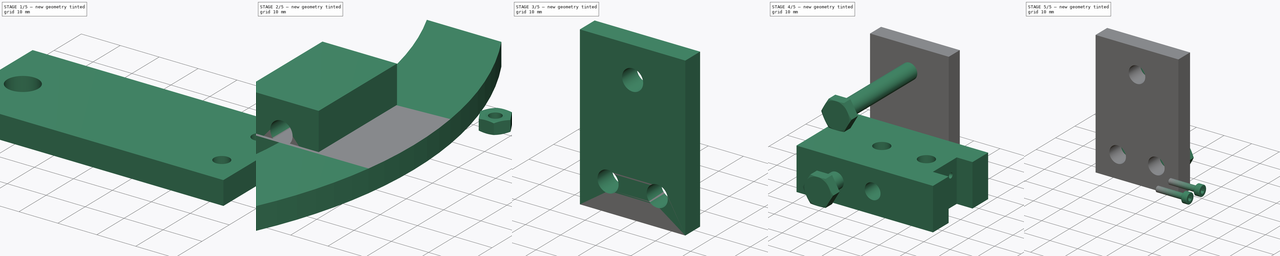
[diagram: build sequence overview — one tinted view per stage of 5, left to right]
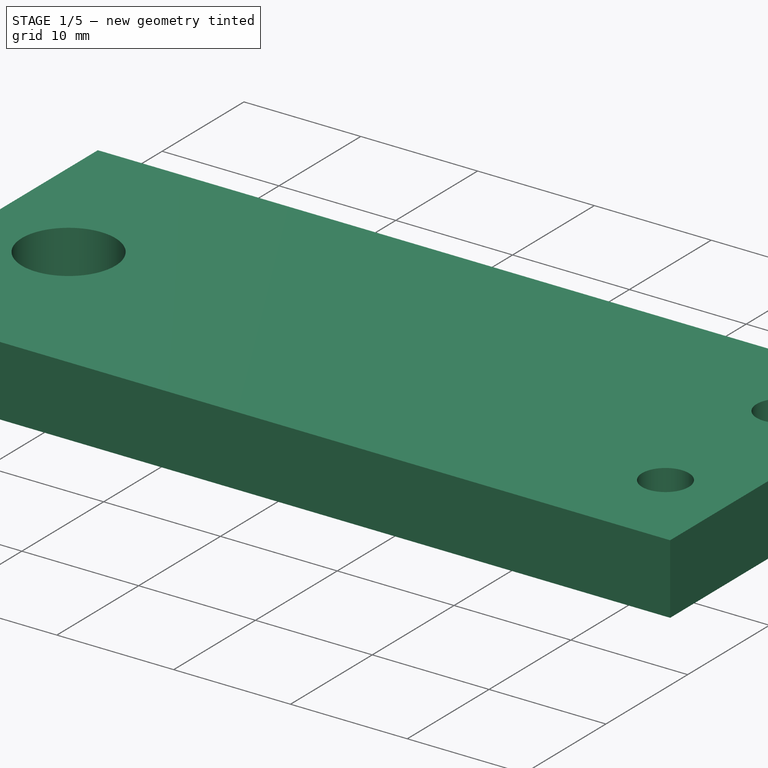
[diagram: stage 1 of 5 — iso view after this stage's code; geometry added in this stage tinted green]
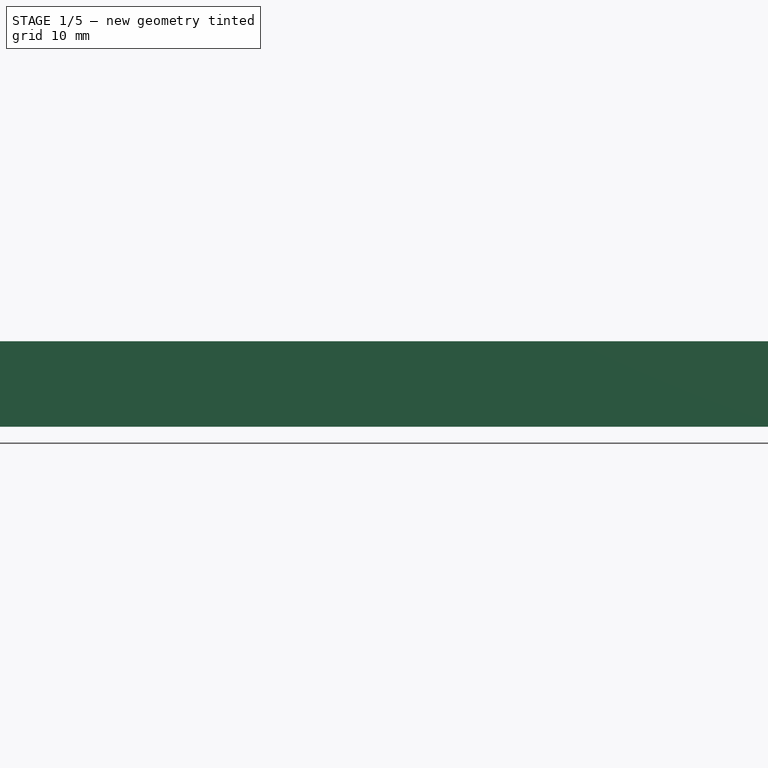
[diagram: stage 1 of 5 — front view after this stage's code; geometry added in this stage tinted green]
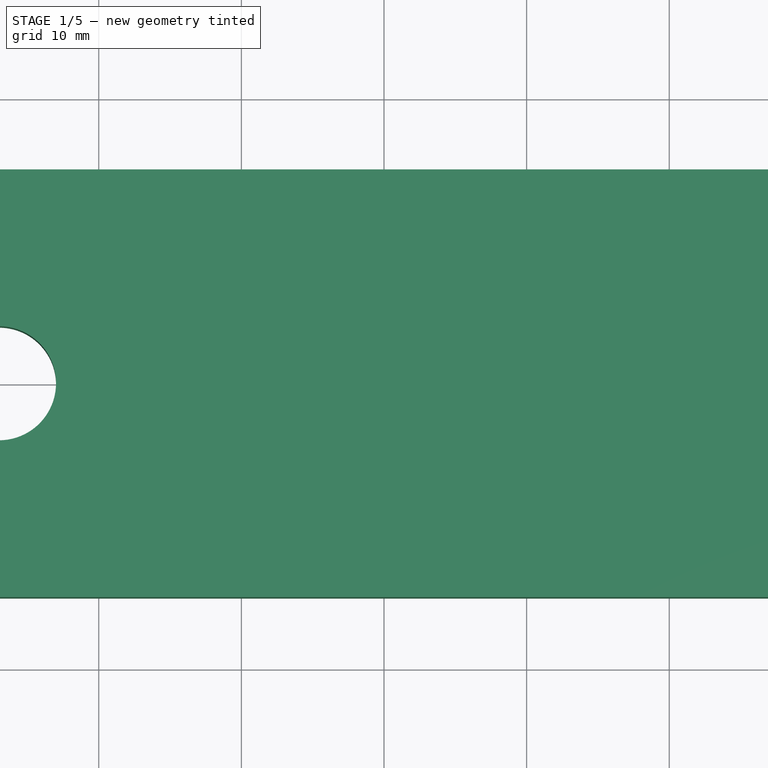
[diagram: stage 1 of 5 — top view after this stage's code; geometry added in this stage tinted green]
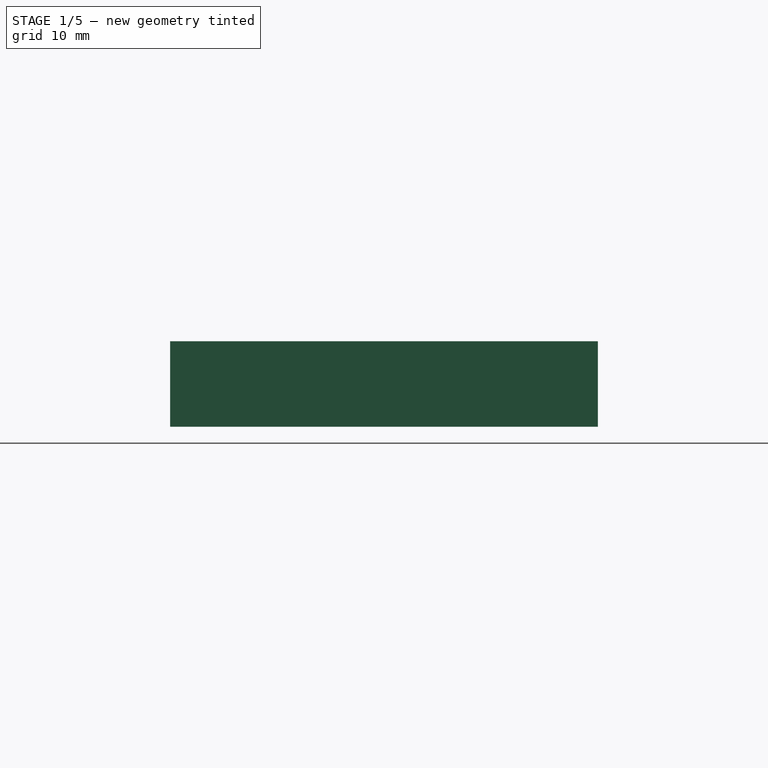
[diagram: stage 1 of 5 — right view after this stage's code; geometry added in this stage tinted green]
FCSTD DOCUMENT  (FreeCAD 0.19R24267 +99 (Git))
Label: PaddleShifter
License: All rights reserved
LicenseURL: http://en.wikipedia.org/wiki/All_rights_reserved
objects: Part::FeaturePython×14, Sketcher::SketchObject×14, PartDesign::Pocket×9, PartDesign::Pad×7, PartDesign::Body×7, App::Part×3, PartDesign::ShapeBinder×2, PartDesign::SubShapeBinder×2, Part::Feature×1
note: 72 computed .brp shape members not serialized (recipe doc carries the construction recipe); baked Part::Feature solids carry a one-line shape summary decoded from their .brp

FEATURE [PartDesign::Body] Body004  label="Крепление рычага"
  Group = -> [Sketch007,Pad004,Sketch008,Pocket002]
  Origin = -> Origin005
  Placement = pos=(0,0,28) rot=(0,0,1;0rad)
  Tip = -> Pocket002
FEATURE [Sketcher::SketchObject] Sketch005
  FullyConstrained = true
  MapMode = 5
  Support = -> [XY_Plane003]
  sketch-geometry (4):
    g0: LineSegment StartX=-35 StartY=15 StartZ=0 EndX=35 EndY=15 EndZ=0
    g1: LineSegment StartX=35 StartY=15 StartZ=0 EndX=35 EndY=-15 EndZ=0
    g2: LineSegment StartX=35 StartY=-15 StartZ=0 EndX=-35 EndY=-15 EndZ=0
    g3: LineSegment StartX=-35 StartY=-15 StartZ=0 EndX=-35 EndY=15 EndZ=0
  constraints (11):
    c: Coincident(g0,g1)
    c: Coincident(g1,g2)
    c: Coincident(g2,g3)
    c: Coincident(g3,g0)
    c: Horizontal(g0)
    c: Horizontal(g2)
    c: Vertical(g1)
    c: Vertical(g3)
    c: Symmetric(g0,g2,g-1)
    c: DistanceY(g1,g1) = 30
    c: DistanceX(g0,g0) = 70
FEATURE [PartDesign::Pad] Pad002
  Direction = (1,1,1)
  Length = 6
  Length2 = 100
  Profile = -> Sketch005
  Type = 0
FEATURE [PartDesign::SubShapeBinder] Binder001
  BindMode = 0
  ClaimChildren = false
  Context = -> Part [Part001.Body002.Binder001.]
  Fuse = false
  MakeFace = true
  PartialLoad = false
  Relative = true
  Support = -> [Part002[Body003.Pad003.Edge15]]
  _Version = 2
FEATURE [PartDesign::Pocket] Pocket004
  BaseFeature = -> Pad002
  Length = 5
  Length2 = 100
  Profile = -> Binder001
  Reversed = true
  Type = 1
FEATURE [Sketcher::SketchObject] Sketch013
  ExternalGeometry = -> [Pocket004]
  FullyConstrained = true
  MapMode = 5
  Placement = pos=(0,0,6) rot=(0,0,1;0rad)
  Support = -> [Pocket004]
  sketch-geometry (3):
    g0: Circle CenterX=29 CenterY=7 CenterZ=0 NormalX=0 NormalY=0 NormalZ=1 AngleXU=0 Radius=2
    g1: Circle CenterX=29 CenterY=-7 CenterZ=0 NormalX=0 NormalY=0 NormalZ=1 AngleXU=0 Radius=2
    g2: LineSegment StartX=29 StartY=15 StartZ=0 EndX=29 EndY=-15 EndZ=0
  constraints (10):
    c: Diameter(g0) = 4
    c: Equal(g0,g1)
    c: PointOnObject(g2,g-3)
    c: PointOnObject(g2,g-4)
    c: Vertical(g2)
    c: PointOnObject(g0,g2)
    c: PointOnObject(g1,g2)
    c: Distance(g0,g2) = 8
    c: Distance(g1,g2) = 8
    c: Distance(g2,g-3) = 6
FEATURE [PartDesign::Pocket] Pocket006
  BaseFeature = -> Pocket004
  Length = 5
  Length2 = 100
  Profile = -> Sketch013
  Type = 1
FEATURE [PartDesign::Body] Body002  label="Рычаг"
  Group = -> [Sketch005,Pad002,Binder001,Pocket004,Sketch013,Pocket006]
  Origin = -> Origin003
  Placement = pos=(13,0,22) rot=(0,0,1;0rad)
  Tip = -> Pocket006
FEATURE [Sketcher::SketchObject] Sketch006
  FullyConstrained = true
  MapMode = 5
  Support = -> [XY_Plane004]
  sketch-geometry (5):
    g0: LineSegment StartX=-8 StartY=15 StartZ=0 EndX=8 EndY=15 EndZ=0
    g1: LineSegment StartX=8 StartY=15 StartZ=0 EndX=8 EndY=-15 EndZ=0
    g2: LineSegment StartX=8 StartY=-15 StartZ=0 EndX=-8 EndY=-15 EndZ=0
    g3: LineSegment StartX=-8 StartY=-15 StartZ=0 EndX=-8 EndY=15 EndZ=0
    g4: Circle CenterX=0 CenterY=0 CenterZ=0 NormalX=0 NormalY=0 NormalZ=1 AngleXU=0 Radius=4
  constraints (13):
    c: Coincident(g0,g1)
    c: Coincident(g1,g2)
    c: Coincident(g2,g3)
    c: Coincident(g3,g0)
    c: Horizontal(g0)
    c: Horizontal(g2)
    c: Vertical(g1)
    c: Vertical(g3)
    c: Symmetric(g0,g2,g-1)
    c: DistanceX(g0,g0) = 16
    c: DistanceY(g1,g1) = 30
    c: Coincident(g4,g-1)
    c: Diameter(g4) = 8
FEATURE [PartDesign::Pad] Pad003
  Direction = (1,1,1)
  Length = 6
  Length2 = 100
  Profile = -> Sketch006
  Type = 0
FEATURE [PartDesign::Body] Body003  label="Проставка"
  Group = -> [Sketch006,Pad003]
  Origin = -> Origin004
  Tip = -> Pad003
FEATURE [Sketcher::SketchObject] Sketch010
  FullyConstrained = true
  MapMode = 5
  Support = -> [XY_Plane007]
  sketch-geometry (1):
    g0: Circle CenterX=0 CenterY=0 CenterZ=0 NormalX=0 NormalY=0 NormalZ=1 AngleXU=0 Radius=4
  constraints (2):
    c: Coincident(g0,g-1)
    c: Diameter(g0) = 8
FEATURE [PartDesign::Pad] Pad005
  Direction = (1,1,1)
  Length = 5
  Length2 = 100
  Profile = -> Sketch010
  Type = 0
FEATURE [PartDesign::Body] Body005  label="Неодимовый магнит (8х5)"
  Group = -> [Sketch010,Pad005]
  Origin = -> Origin007
  Placement = pos=(-14,0,22) rot=(0,0,1;0rad)
  Tip = -> Pad005
FEATURE [Part::FeaturePython] Clone  label="Неодимовый магнит (8х5)001"  # Draft clone (typed FeaturePython)
  AttacherType = Attacher::AttachEngine3D
  Fuse = false
  Objects = -> [Body005]
  Placement = pos=(4e-15,0,1) rot=(0,0,1;0rad)
  Scale = (1,1,1)
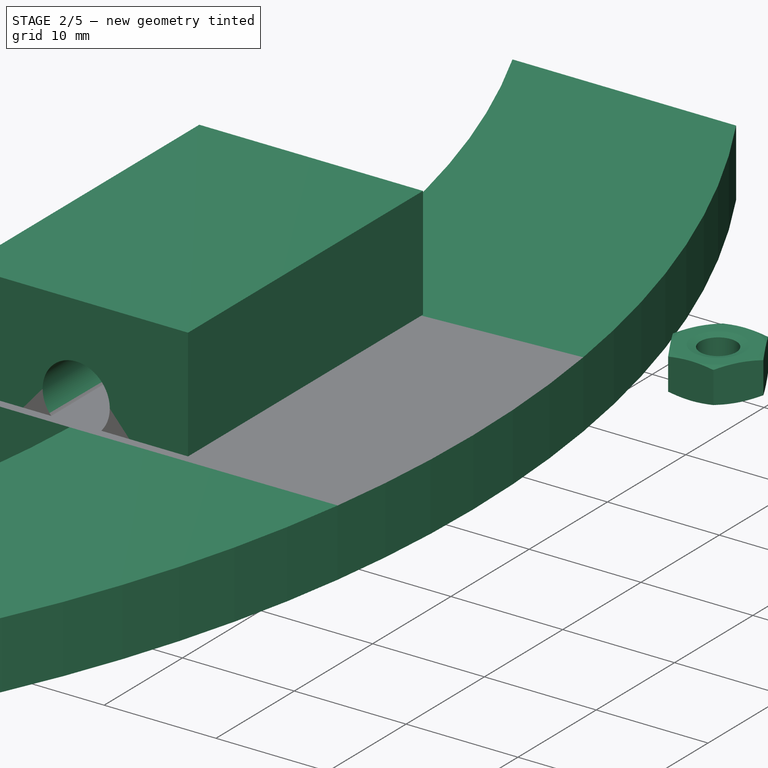
[diagram: stage 2 of 5 — iso view after this stage's code; geometry added in this stage tinted green]
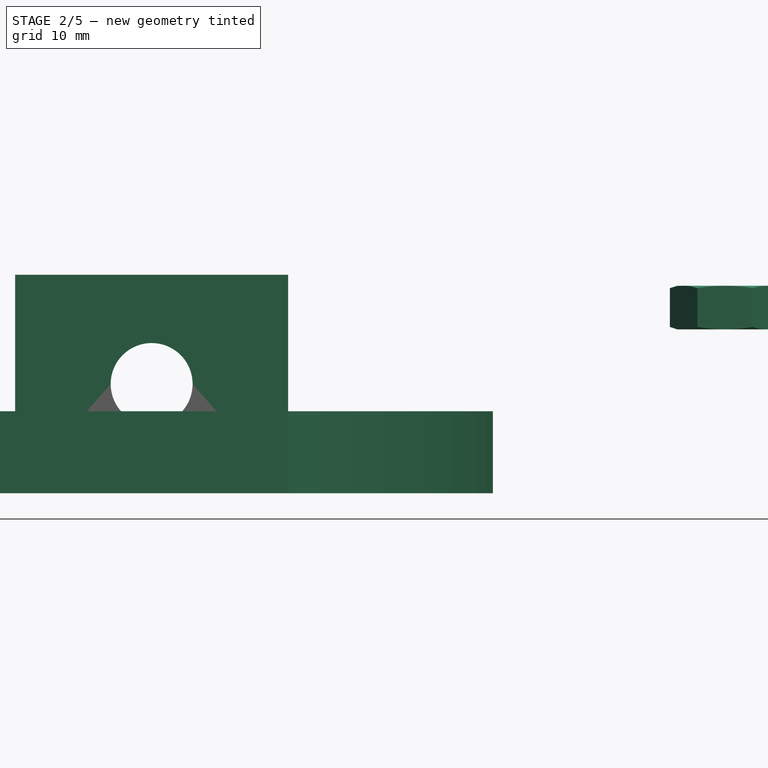
[diagram: stage 2 of 5 — front view after this stage's code; geometry added in this stage tinted green]
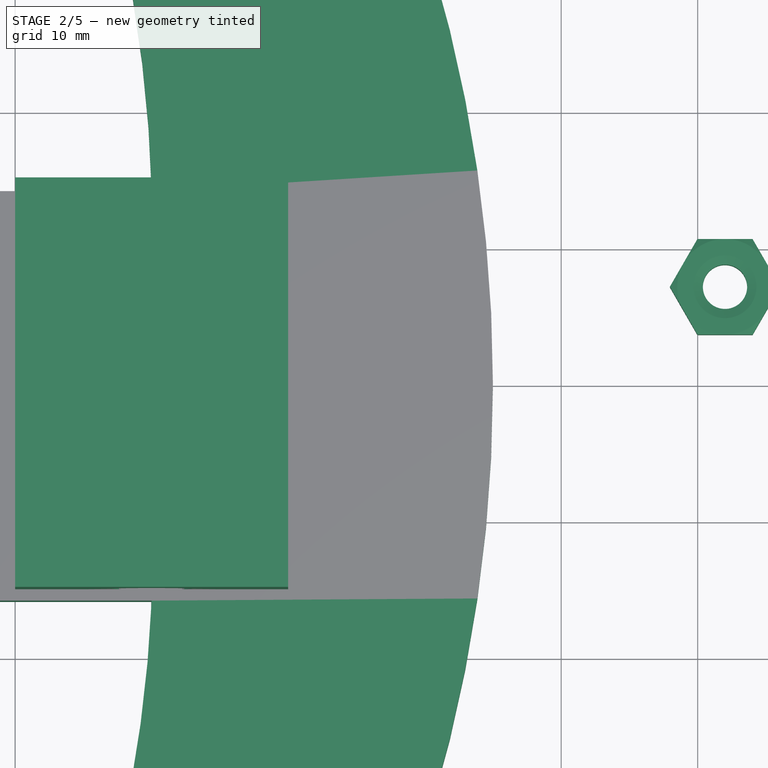
[diagram: stage 2 of 5 — top view after this stage's code; geometry added in this stage tinted green]
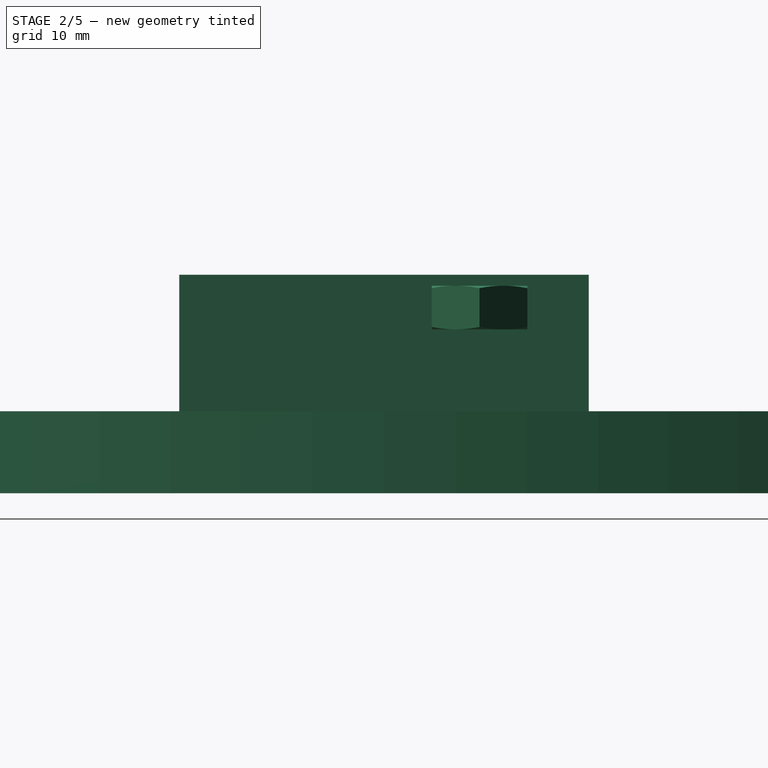
[diagram: stage 2 of 5 — right view after this stage's code; geometry added in this stage tinted green]
FEATURE [Sketcher::SketchObject] Sketch012
  FullyConstrained = false
  MapMode = 5
  Support = -> [XY_Plane009]
  sketch-geometry (13):
    g0: LineSegment StartX=-10 StartY=55 StartZ=0 EndX=10 EndY=55 EndZ=0
    g1: LineSegment StartX=10 StartY=55 StartZ=0 EndX=10 EndY=-55 EndZ=0
    g2: LineSegment StartX=10 StartY=-55 StartZ=0 EndX=-10 EndY=-55 EndZ=0
    g3: LineSegment StartX=-10 StartY=-55 StartZ=0 EndX=-10 EndY=55 EndZ=0
    g4: LineSegment StartX=10 StartY=55 StartZ=0 EndX=-10 EndY=55 EndZ=0
    g5: LineSegment StartX=0 StartY=14.1646 StartZ=0 EndX=-12 EndY=14.1646 EndZ=0
    g6: LineSegment StartX=7e-16 StartY=-15.8354 StartZ=0 EndX=-12 EndY=-15.8354 EndZ=0
    g7: LineSegment StartX=-12 StartY=14.1646 StartZ=0 EndX=-12 EndY=-15.8354 EndZ=0
    g8: LineSegment StartX=10 StartY=-55 StartZ=0 EndX=-10 EndY=-55 EndZ=0
    g9: ArcOfCircle CenterX=-83.3333 CenterY=1e-15 CenterZ=0 NormalX=0 NormalY=0 NormalZ=1 AngleXU=0 Radius=108.333 StartAngle=5.75068 EndAngle=6.81569
    g10: ArcOfCircle CenterX=-98.5179 CenterY=-11.5395 CenterZ=0 NormalX=0 NormalY=0 NormalZ=1 AngleXU=0 Radius=98.6115 StartAngle=5.82678 EndAngle=6.23961
    g11: ArcOfCircle CenterX=-98.5798 CenterY=11.666 CenterZ=0 NormalX=0 NormalY=0 NormalZ=1 AngleXU=0 Radius=98.6115 StartAngle=0.025341 EndAngle=0.454978
    g12: GeomPoint X=25 Y=0 Z=0
  constraints (34):
    c: Coincident(g0,g1)
    c: Coincident(g2,g3)
    c: Coincident(g3,g0)
    c: Horizontal(g0)
    c: Horizontal(g2)
    c: Coincident(g7,g5)
    c: Coincident(g7,g6)
    c: Equal(g5,g6)
    c: Vertical(g7)
    c: Coincident(g8,g2)
    c: Horizontal(g5)
    c: Horizontal(g6)
    c: Coincident(g4,g0)
    c: DistanceX(g0,g0) = 20
    c: PointOnObject(g5,g-2)
    c: DistanceY(g7,g7) = 30
    c: Coincident(g9,g4)
    c: Vertical(g3)
    c: Vertical(g1)
    c: Coincident(g10,g6)
    c: Coincident(g10,g8)
    c: Coincident(g11,g4)
    c: Coincident(g11,g5)
    c: Equal(g11,g10)
    c: DistanceY(g8,g4) = 110
    c: PointOnObject(g12,g9)
    c: PointOnObject(g12,g-1)
    c: Distance(g-1,g12) = 25
    c: DistanceX(g5,g5) = 12
    c: Coincident(g8,g1)
    c: Coincident(g8,g9)
    c: Coincident(g8,g2)
    c: Coincident(g4,g0)
    c: Symmetric(g8,g4,g-1)
FEATURE [PartDesign::Pad] Pad006
  Direction = (1,1,1)
  Length = 6
  Length2 = 100
  Profile = -> Sketch012
  Type = 0
FEATURE [Sketcher::SketchObject] Sketch014
  ExternalGeometry = -> [Pad006]
  FullyConstrained = true
  MapMode = 5
  Placement = pos=(0,0,6) rot=(0,0,1;0rad)
  Support = -> [Pad006]
  sketch-geometry (3):
    g0: Circle CenterX=-6 CenterY=6.1646 CenterZ=0 NormalX=0 NormalY=0 NormalZ=1 AngleXU=0 Radius=2
    g1: Circle CenterX=-6 CenterY=-7.8354 CenterZ=0 NormalX=0 NormalY=0 NormalZ=1 AngleXU=0 Radius=2
    g2: LineSegment StartX=-6 StartY=14.1646 StartZ=0 EndX=-6 EndY=-15.8354 EndZ=0
  constraints (10):
    c: Equal(g0,g1)
    c: Diameter(g0) = 4
    c: PointOnObject(g2,g-3)
    c: PointOnObject(g2,g-5)
    c: Vertical(g2)
    c: PointOnObject(g0,g2)
    c: PointOnObject(g1,g2)
    c: Distance(g0,g2) = 8
    c: Distance(g1,g2) = 8
    c: Distance(g2,g-4) = 6
FEATURE [PartDesign::Pocket] Pocket007
  BaseFeature = -> Pad006
  Length = 5
  Length2 = 100
  Profile = -> Sketch014
  Type = 1
FEATURE [PartDesign::Body] Body006  label="Лепесток"
  Group = -> [Sketch012,Pad006,Sketch014,Pocket007]
  Origin = -> Origin009
  Placement = pos=(48,0.8354,16) rot=(0,0,1;0rad)
  Tip = -> Pocket007
FEATURE [Sketcher::SketchObject] Sketch007
  FullyConstrained = true
  MapMode = 5
  Support = -> [XY_Plane005]
  sketch-geometry (4):
    g0: LineSegment StartX=-10 StartY=15 StartZ=0 EndX=10 EndY=15 EndZ=0
    g1: LineSegment StartX=10 StartY=15 StartZ=0 EndX=10 EndY=-15 EndZ=0
    g2: LineSegment StartX=10 StartY=-15 StartZ=0 EndX=-10 EndY=-15 EndZ=0
    g3: LineSegment StartX=-10 StartY=-15 StartZ=0 EndX=-10 EndY=15 EndZ=0
  constraints (11):
    c: Coincident(g0,g1)
    c: Coincident(g1,g2)
    c: Coincident(g2,g3)
    c: Coincident(g3,g0)
    c: Horizontal(g0)
    c: Horizontal(g2)
    c: Vertical(g1)
    c: Vertical(g3)
    c: Symmetric(g0,g2,g-1)
    c: DistanceX(g0,g0) = 20
    c: DistanceY(g1,g1) = 30
FEATURE [PartDesign::Pad] Pad004
  Direction = (1,1,1)
  Length = 16
  Length2 = 100
  Profile = -> Sketch007
  Type = 0
FEATURE [Sketcher::SketchObject] Sketch008
  ExternalGeometry = -> [Pad004]
  FullyConstrained = true
  MapMode = 5
  Placement = pos=(0,15,0) rot=(0,0.707107,0.707107;3.14159rad)
  Support = -> [Pad004]
  sketch-geometry (1):
    g0: Circle CenterX=1.1e-15 CenterY=8 CenterZ=0 NormalX=0 NormalY=0 NormalZ=1 AngleXU=0 Radius=3
  constraints (2):
    c: Diameter(g0) = 6
    c: Symmetric(g-3,g-5,g0)
FEATURE [PartDesign::Pocket] Pocket002
  BaseFeature = -> Pad004
  Length = 5
  Length2 = 100
  Profile = -> Sketch008
  Type = 1
FEATURE [App::Part] Part002  label="Проставка001"
  Group = -> [Clone,Body003]
  Origin = -> Origin008
  Placement = pos=(-14,0,16) rot=(0,0,1;0rad)
FEATURE [Part::FeaturePython] Screw  label="M4x16-Screw001"  # Fasteners workbench fastener (typed FeaturePython)
  Placement = pos=(42,7,28) rot=(0,0,1;0rad)
  baseObject = -> Body002 [Edge18]
  diameter = 6
  invert = false
  length = 6
  lengthCustom = 16
  matchOuter = false
  offset = 0
  thread = false
  type = 35
FEATURE [Part::FeaturePython] Nut005  label="M4-Nut001"  # Fasteners workbench fastener (typed FeaturePython)
  Placement = pos=(42,7,12) rot=(0,0,1;0rad)
  baseObject = -> Screw [Edge7]
  diameter = 6
  invert = false
  matchOuter = false
  offset = 0
  thread = false
  type = 7
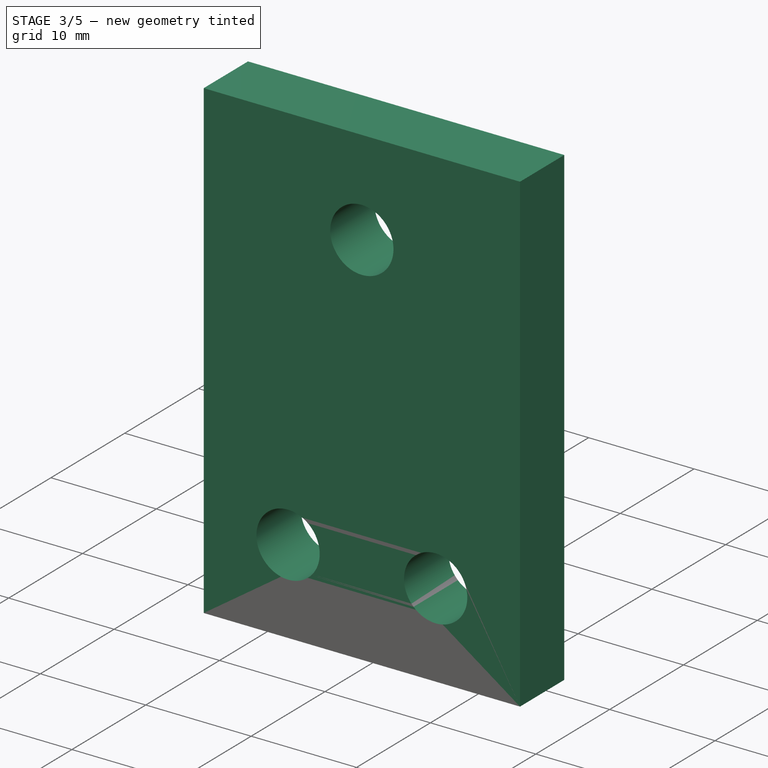
[diagram: stage 3 of 5 — iso view after this stage's code; geometry added in this stage tinted green]
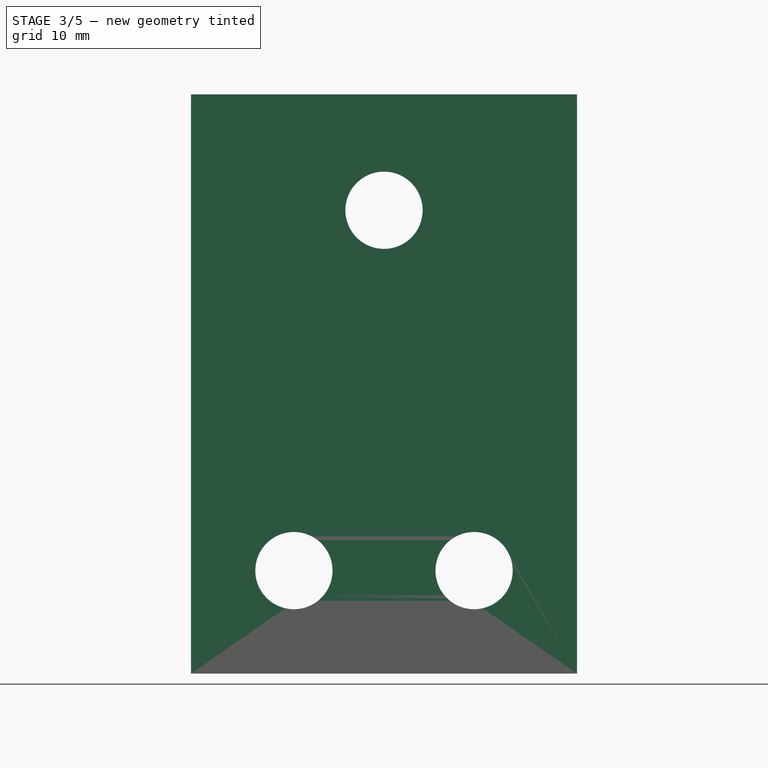
[diagram: stage 3 of 5 — front view after this stage's code; geometry added in this stage tinted green]
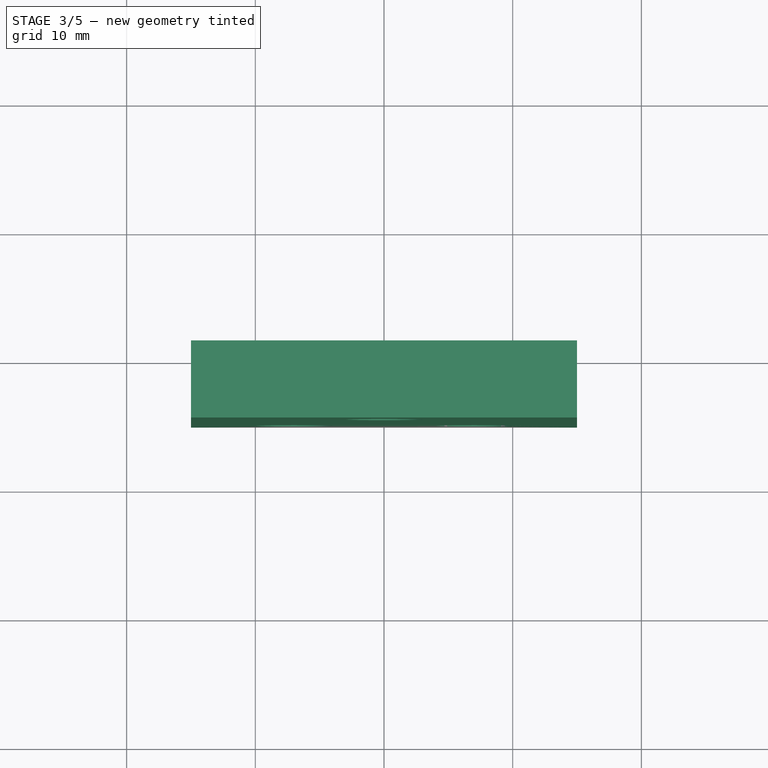
[diagram: stage 3 of 5 — top view after this stage's code; geometry added in this stage tinted green]
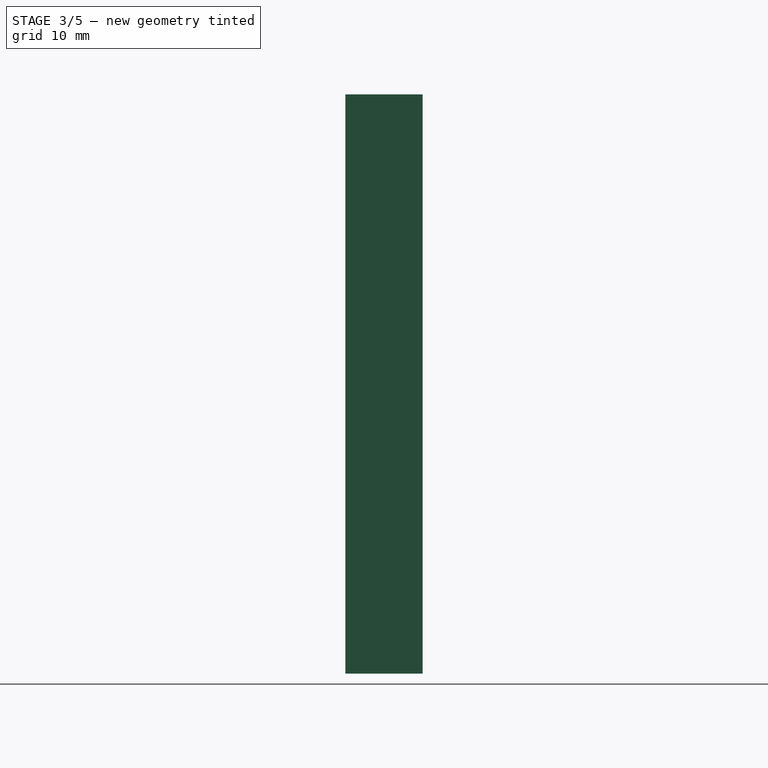
[diagram: stage 3 of 5 — right view after this stage's code; geometry added in this stage tinted green]
FEATURE [Sketcher::SketchObject] Sketch001
  FullyConstrained = true
  MapMode = 5
  Support = -> [XY_Plane002]
  sketch-geometry (4):
    g0: LineSegment StartX=-15 StartY=22.5 StartZ=0 EndX=15 EndY=22.5 EndZ=0
    g1: LineSegment StartX=15 StartY=22.5 StartZ=0 EndX=15 EndY=-22.5 EndZ=0
    g2: LineSegment StartX=15 StartY=-22.5 StartZ=0 EndX=-15 EndY=-22.5 EndZ=0
    g3: LineSegment StartX=-15 StartY=-22.5 StartZ=0 EndX=-15 EndY=22.5 EndZ=0
  constraints (11):
    c: Coincident(g0,g1)
    c: Coincident(g1,g2)
    c: Coincident(g2,g3)
    c: Coincident(g3,g0)
    c: Horizontal(g0)
    c: Horizontal(g2)
    c: Vertical(g1)
    c: Vertical(g3)
    c: Symmetric(g2,g0,g-1)
    c: DistanceX(g0,g0) = 30
    c: DistanceY(g1,g1) = 45
FEATURE [PartDesign::Pad] Pad001
  Direction = (1,1,1)
  Length = 6
  Length2 = 100
  Profile = -> Sketch001
  Type = 0
FEATURE [Sketcher::SketchObject] Sketch003
  ExternalGeometry = -> [Pad001]
  FullyConstrained = false
  MapMode = 5
  Placement = pos=(0,0,6) rot=(0,0,1;0rad)
  Support = -> [Pad001]
  sketch-geometry (5):
    g0: Circle CenterX=7 CenterY=-14.5 CenterZ=0 NormalX=0 NormalY=0 NormalZ=1 AngleXU=0 Radius=3
    g1: Circle CenterX=-7 CenterY=-14.5 CenterZ=0 NormalX=0 NormalY=0 NormalZ=1 AngleXU=0 Radius=3
    g2: LineSegment StartX=-15 StartY=-14.5 StartZ=0 EndX=15 EndY=-14.5 EndZ=0
    g3: GeomPoint X=0 Y=-14.5 Z=0
    g4: Circle CenterX=7e-16 CenterY=16 CenterZ=0 NormalX=0 NormalY=0 NormalZ=1 AngleXU=0 Radius=3
  constraints (11):
    c: PointOnObject(g2,g-3)
    c: PointOnObject(g2,g-5)
    c: Horizontal(g2)
    c: PointOnObject(g1,g2)
    c: PointOnObject(g0,g2)
    c: Distance(g2,g-4) = 8
    c: Distance(g1,g2) = 8
    c: PointOnObject(g3,g-2)
    c: Symmetric(g0,g1,g3)
    c: Diameter(g0) = 6
    c: Equal(g0,g1)
FEATURE [PartDesign::Pocket] Pocket
  BaseFeature = -> Pad001
  Length = 5
  Length2 = 100
  Profile = -> Sketch003
  Type = 1
FEATURE [PartDesign::SubShapeBinder] Binder
  BindMode = 0
  ClaimChildren = false
  Context = -> Part [Body001.Binder.]
  Fuse = false
  MakeFace = true
  PartialLoad = false
  Relative = true
  Support = -> [Part001[Body004.Pocket002.Edge15]]
  _Version = 2
FEATURE [PartDesign::Pocket] Pocket008
  BaseFeature = -> Pocket
  Length = 5
  Length2 = 100
  Profile = -> Binder
  Reversed = true
  Type = 1
FEATURE [PartDesign::Body] Body  label="Основа"
  Group = -> [Sketch,Pad,ShapeBinder,Sketch004,Pocket001,Sketch009,Pocket003,ShapeBinder001,Sketch011,Pocket005]
  Origin = -> Origin001
  Tip = -> Pocket005
FEATURE [Part::FeaturePython] Nut  label="M4-Nut"  # Fasteners workbench fastener (typed FeaturePython)
  Placement = pos=(42,-7,12) rot=(0,0,1;0rad)
  baseObject = -> Screw001 [Edge7]
  diameter = 6
  invert = false
  matchOuter = false
  offset = 0
  thread = false
  type = 7
FEATURE [Part::FeaturePython] Screw001  label="M4x16-Screw"  # Fasteners workbench fastener (typed FeaturePython)
  Placement = pos=(42,-7,28) rot=(0,0,1;0rad)
  baseObject = -> Body002 [Edge16]
  diameter = 6
  invert = false
  length = 6
  lengthCustom = 16
  matchOuter = false
  offset = 0
  thread = false
  type = 35
FEATURE [App::Part] Part001  label="Рычаг001"
  Group = -> [Body002,Body004,Body005,Body006,Screw001,Nut,Screw,Nut005]
  Origin = -> Origin006
FEATURE [Part::FeaturePython] Clone001  label="Крепление001"  # Draft clone (typed FeaturePython)
  AttacherType = Attacher::AttachEngine3D
  Fuse = false
  Objects = -> [Body001]
  Placement = pos=(-3e-15,21,22.5) rot=(1,0,0;1.5708rad)
  Scale = (1,1,1)
FEATURE [App::Part] Part  label="PaddleShifter"
  Group = -> [Body,Body001,Part__Feature,Part001,Part002,Screw002,Screw003,Screw004,Nut002,Nut003,Nut004,Screw005,Screw006,Clone001]
  Origin = -> Origin
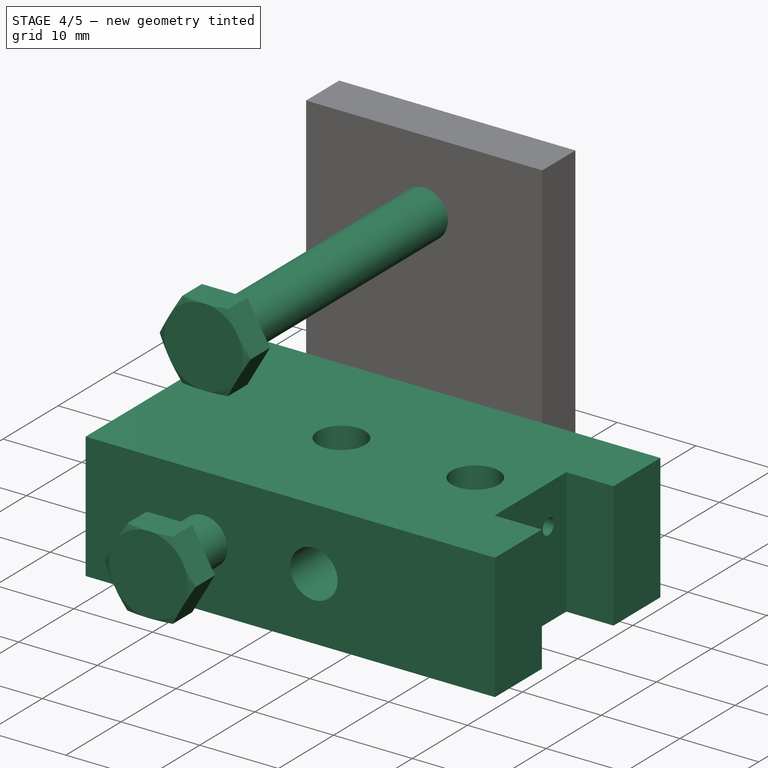
[diagram: stage 4 of 5 — iso view after this stage's code; geometry added in this stage tinted green]
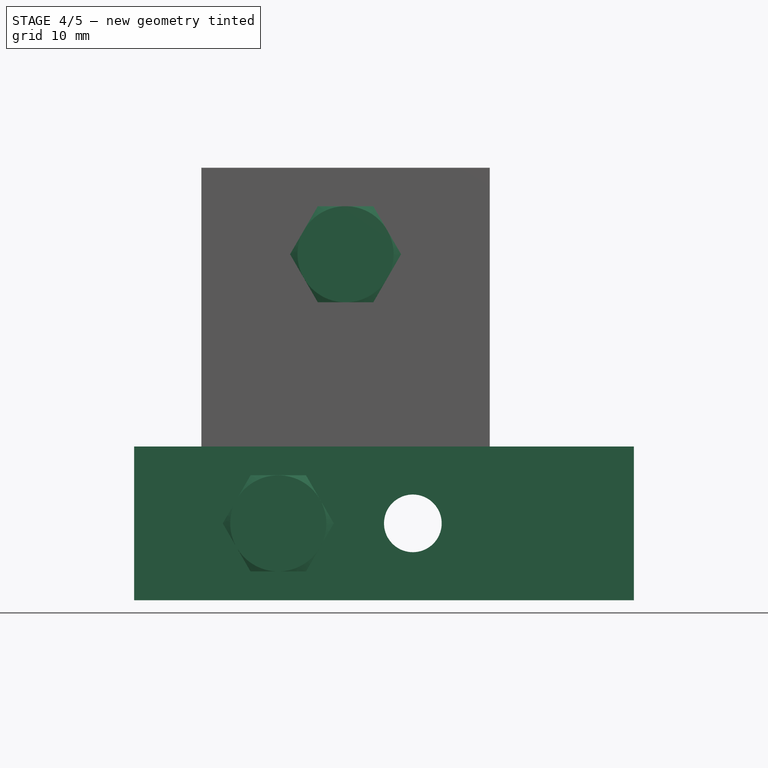
[diagram: stage 4 of 5 — front view after this stage's code; geometry added in this stage tinted green]
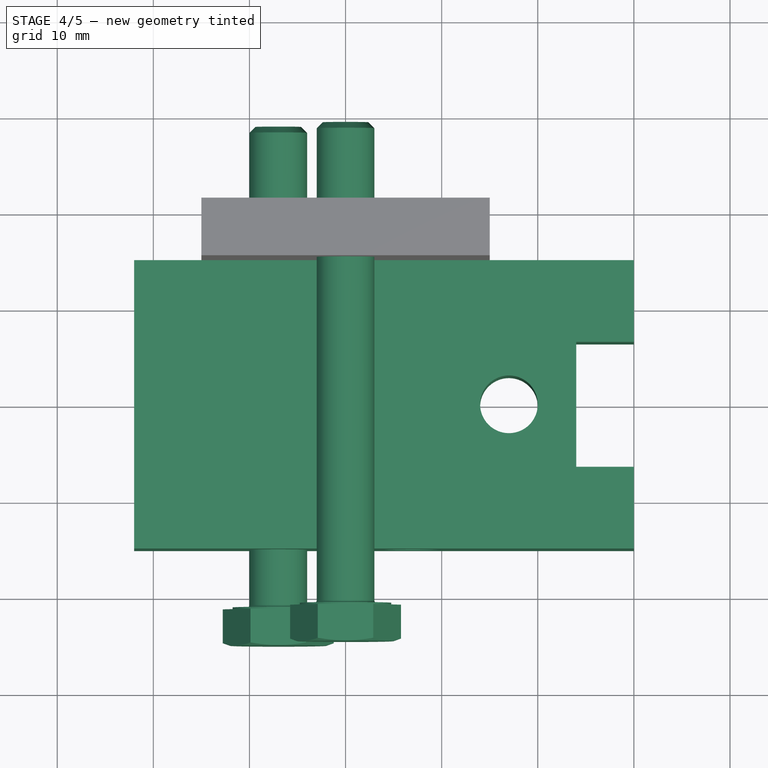
[diagram: stage 4 of 5 — top view after this stage's code; geometry added in this stage tinted green]
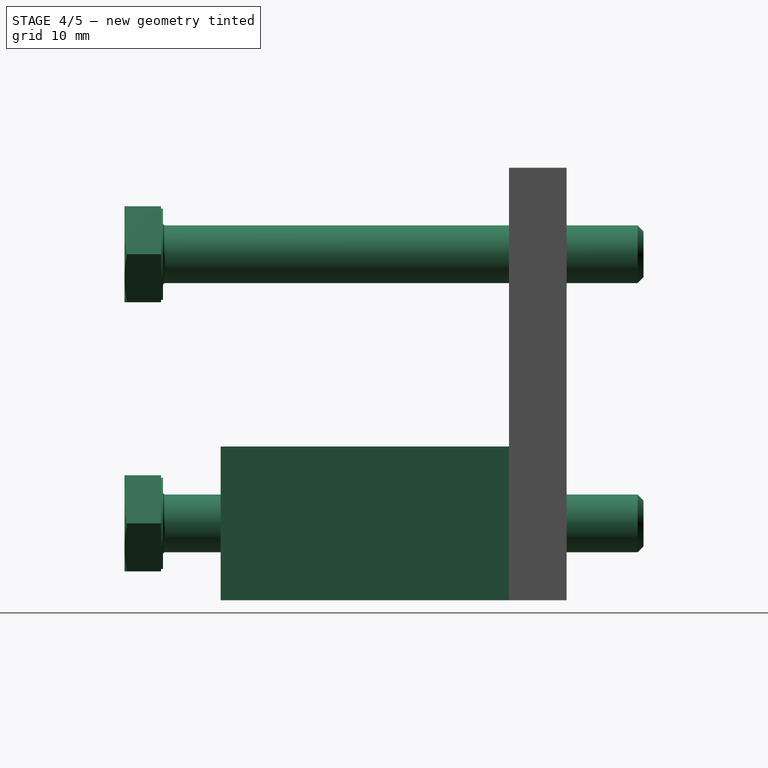
[diagram: stage 4 of 5 — right view after this stage's code; geometry added in this stage tinted green]
FEATURE [Part::FeaturePython] Screw003  label="M6x50-Screw077"  # Fasteners workbench fastener (typed FeaturePython)
  Placement = pos=(-7,-21,8) rot=(1,0,0;1.5708rad)
  baseObject = -> Body001 [Edge17]
  diameter = 8
  invert = false
  length = 9
  lengthCustom = 50
  matchOuter = true
  offset = 0
  thread = false
  type = 29
FEATURE [Part::FeaturePython] Screw002  label="M6x50-Screw"  # Fasteners workbench fastener (typed FeaturePython)
  Placement = pos=(-1e-15,-21,36) rot=(1,0,0;1.5708rad)
  baseObject = -> Body001 [Edge18]
  diameter = 8
  invert = true
  length = 9
  lengthCustom = 50
  matchOuter = true
  offset = 0
  thread = false
  type = 29
FEATURE [Part::Feature] Part__Feature  label="Switch"
  Placement = pos=(27,1.5e-14,9.5) rot=(0,0,1;1.5708rad)
  shape: bbox 7.341 x 13.39 x 13 mm, 256 faces, 7 solids (baked)
FEATURE [PartDesign::ShapeBinder] ShapeBinder001
  Placement = pos=(27,1.5e-14,9.5) rot=(0,0,1;1.5708rad)
  Support = -> [Part__Feature]
  TraceSupport = false
FEATURE [Sketcher::SketchObject] Sketch
  FullyConstrained = true
  MapMode = 5
  Support = -> [XY_Plane001]
  sketch-geometry (10):
    g0: LineSegment StartX=-22 StartY=15 StartZ=0 EndX=30 EndY=15 EndZ=0
    g1: LineSegment StartX=30 StartY=-15 StartZ=0 EndX=-22 EndY=-15 EndZ=0
    g2: LineSegment StartX=-22 StartY=-15 StartZ=0 EndX=-22 EndY=15 EndZ=0
    g3: GeomPoint X=0 Y=15 Z=0
    g4: GeomPoint X=-22 Y=0 Z=0
    g5: LineSegment StartX=30 StartY=15 StartZ=0 EndX=30 EndY=6.5 EndZ=0
    g6: LineSegment StartX=30 StartY=-15 StartZ=0 EndX=30 EndY=-6.5 EndZ=0
    g7: LineSegment StartX=30 StartY=-6.5 StartZ=0 EndX=24 EndY=-6.5 EndZ=0
    g8: LineSegment StartX=24 StartY=-6.5 StartZ=0 EndX=24 EndY=6.5 EndZ=0
    g9: LineSegment StartX=24 StartY=6.5 StartZ=0 EndX=30 EndY=6.5 EndZ=0
  constraints (27):
    c: Coincident(g1,g2)
    c: Coincident(g2,g0)
    c: Horizontal(g0)
    c: Horizontal(g1)
    c: Vertical(g2)
    c: DistanceY(g1,g0) = 30
    c: PointOnObject(g3,g-2)
    c: PointOnObject(g3,g0)
    c: Distance(g3,g0) = 22
    c: Distance(g3,g0) = 30
    c: PointOnObject(g4,g-1)
    c: Symmetric(g0,g1,g4)
    c: Coincident(g5,g0)
    c: Vertical(g5)
    c: Coincident(g6,g1)
    c: Vertical(g6)
    c: Coincident(g7,g6)
    c: Horizontal(g7)
    c: Coincident(g8,g7)
    c: Vertical(g8)
    c: Coincident(g9,g8)
    c: Coincident(g9,g5)
    c: Horizontal(g9)
    c: DistanceY(g8,g8) = 13
    c: Equal(g7,g9)
    c: Equal(g5,g6)
    c: DistanceX(g7,g7) = 6
FEATURE [PartDesign::Pad] Pad
  Direction = (1,1,1)
  Length = 16
  Length2 = 100
  Profile = -> Sketch
  Type = 0
FEATURE [PartDesign::Body] Body001  label="Крепление"
  Group = -> [Sketch001,Pad001,Sketch003,Pocket,Binder,Pocket008]
  Origin = -> Origin002
  Placement = pos=(-3e-15,-15,22.5) rot=(1,0,0;1.5708rad)
  Tip = -> Pocket008
FEATURE [PartDesign::ShapeBinder] ShapeBinder
  Placement = pos=(-3e-15,-15,22.5) rot=(1,0,0;1.5708rad)
  Support = -> [Body001]
  TraceSupport = false
FEATURE [Sketcher::SketchObject] Sketch004
  ExternalGeometry = -> [ShapeBinder]
  FullyConstrained = false
  MapMode = 5
  Placement = pos=(0,15,0) rot=(0,0.707107,0.707107;3.14159rad)
  Support = -> [Pad]
  sketch-geometry (3):
    g0: Circle CenterX=7 CenterY=8 CenterZ=0 NormalX=0 NormalY=0 NormalZ=1 AngleXU=0 Radius=3
    g1: Circle CenterX=-9e-16 CenterY=31 CenterZ=0 NormalX=0 NormalY=0 NormalZ=1 AngleXU=0 Radius=3
    g2: Circle CenterX=-7 CenterY=8 CenterZ=0 NormalX=0 NormalY=0 NormalZ=1 AngleXU=0 Radius=3
FEATURE [PartDesign::Pocket] Pocket001
  BaseFeature = -> Pad
  Length = 5
  Length2 = 100
  Profile = -> Sketch004
  Type = 1
FEATURE [Sketcher::SketchObject] Sketch009
  ExternalGeometry = -> [Pocket001]
  FullyConstrained = true
  MapMode = 5
  Placement = pos=(0,0,16) rot=(0,0,1;0rad)
  Support = -> [Pocket001]
  sketch-geometry (2):
    g0: Circle CenterX=0 CenterY=0 CenterZ=0 NormalX=0 NormalY=0 NormalZ=1 AngleXU=0 Radius=3
    g1: Circle CenterX=17 CenterY=0 CenterZ=0 NormalX=0 NormalY=0 NormalZ=1 AngleXU=0 Radius=3
  constraints (5):
    c: Diameter(g0) = 6
    c: PointOnObject(g1,g-1)
    c: Equal(g0,g1)
    c: Distance(g1,g-6) = 13
    c: Coincident(g0,g-1)
FEATURE [PartDesign::Pocket] Pocket003
  BaseFeature = -> Pocket001
  Length = 5
  Length2 = 100
  Profile = -> Sketch009
  Type = 1
FEATURE [Sketcher::SketchObject] Sketch011
  ExternalGeometry = -> [Pocket003]
  FullyConstrained = true
  MapMode = 5
  Placement = pos=(24,0,0) rot=(0.57735,0.57735,0.57735;2.0944rad)
  Support = -> [Pocket003]
  sketch-geometry (3):
    g0: Circle CenterX=3.25 CenterY=11 CenterZ=0 NormalX=0 NormalY=0 NormalZ=1 AngleXU=0 Radius=1
    g1: Circle CenterX=-3.25 CenterY=11 CenterZ=0 NormalX=0 NormalY=0 NormalZ=1 AngleXU=0 Radius=1
    g2: LineSegment StartX=-3.25 StartY=11 StartZ=0 EndX=3.25 EndY=11 EndZ=0
  constraints (8):
    c: Diameter(g0) = 2
    c: DistanceX(g-2,g0) = 3.25
    c: Equal(g1,g0)
    c: Coincident(g2,g1)
    c: Coincident(g2,g0)
    c: Horizontal(g2)
    c: DistanceX(g-2,g1) = -3.25
    c: Distance(g1,g-3) = 5
FEATURE [PartDesign::Pocket] Pocket005
  BaseFeature = -> Pocket003
  Length = 5
  Length2 = 100
  Profile = -> Sketch011
  Type = 0
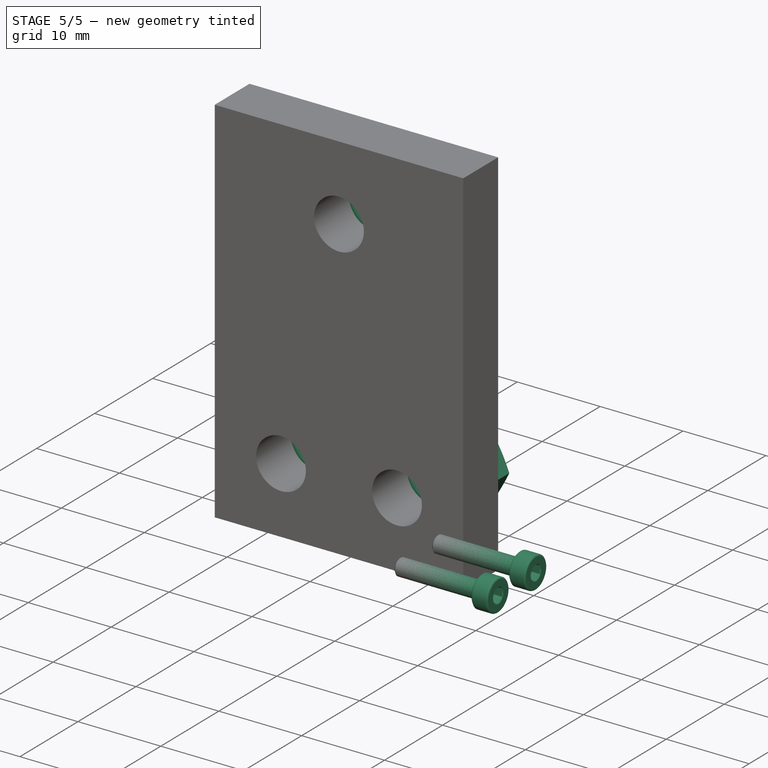
[diagram: stage 5 of 5 — iso view after this stage's code; geometry added in this stage tinted green]
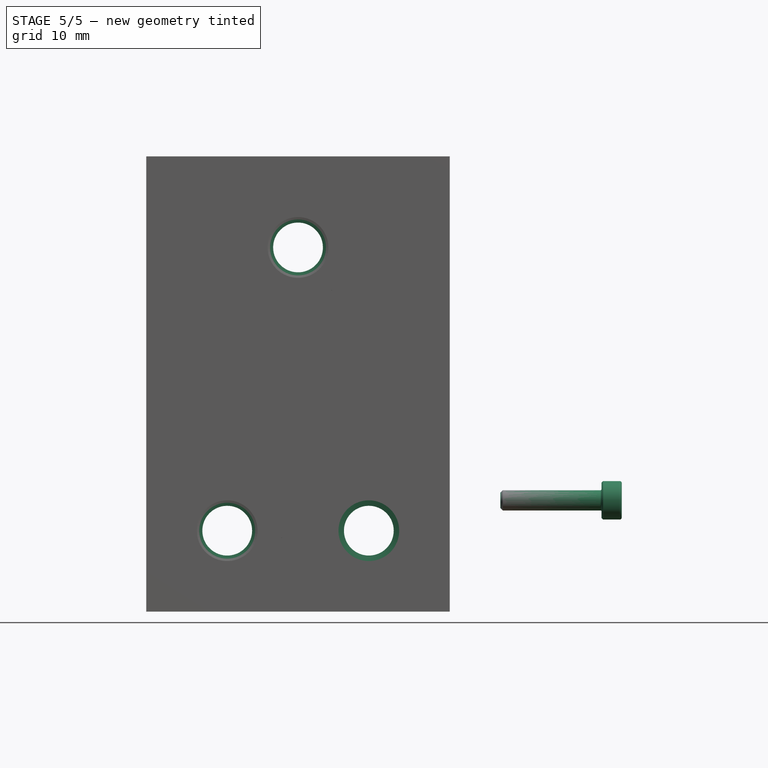
[diagram: stage 5 of 5 — front view after this stage's code; geometry added in this stage tinted green]
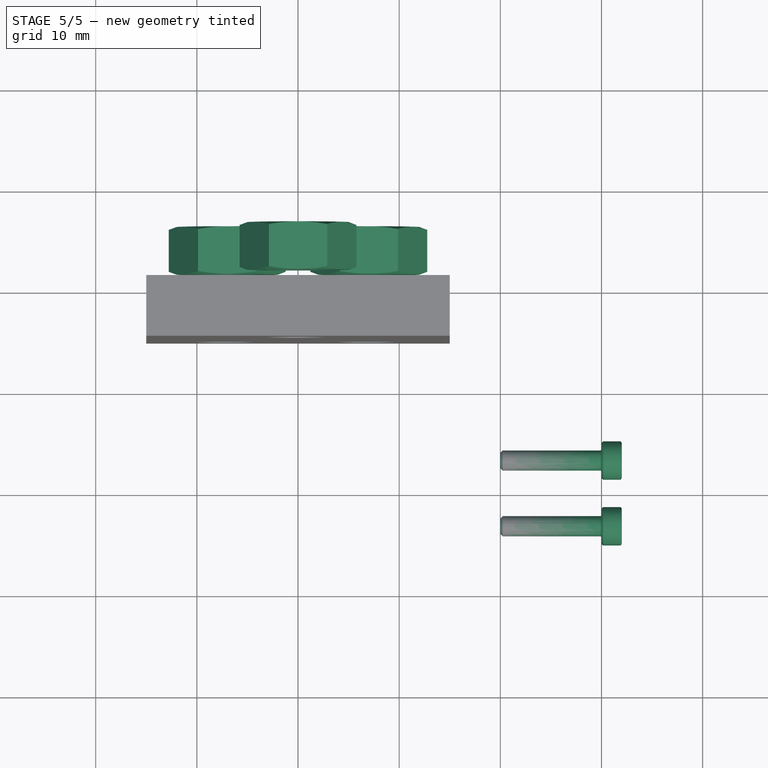
[diagram: stage 5 of 5 — top view after this stage's code; geometry added in this stage tinted green]
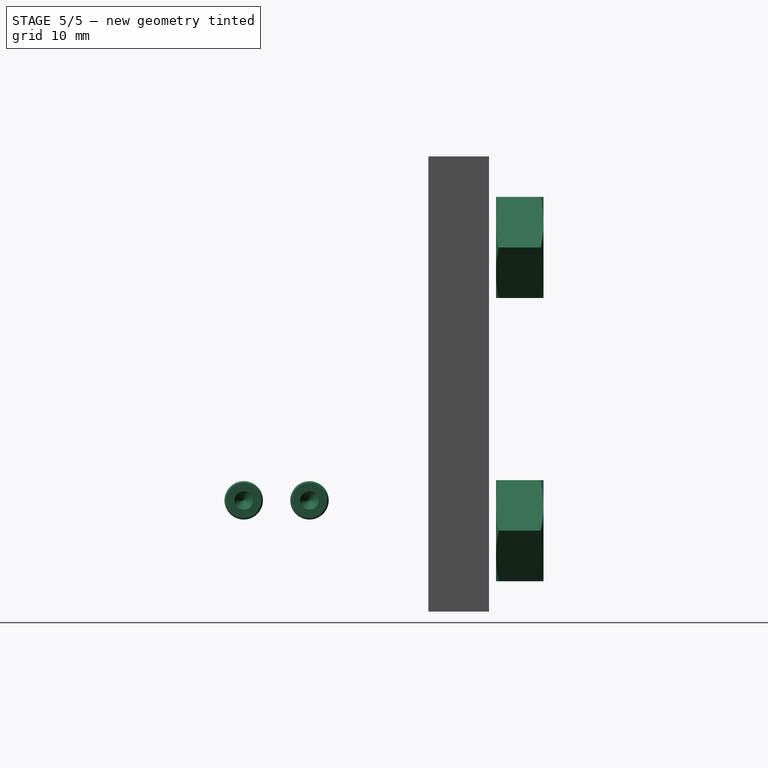
[diagram: stage 5 of 5 — right view after this stage's code; geometry added in this stage tinted green]
FEATURE [Part::FeaturePython] Screw006  label="M2x10-Screw001"  # Fasteners workbench fastener (typed FeaturePython)
  Placement = pos=(30,3.25,11) rot=(0,1,0;1.5708rad)
  baseObject = -> Body [Edge35]
  diameter = 2
  invert = false
  length = 5
  lengthCustom = 10
  matchOuter = true
  offset = 6
  thread = false
  type = 34
FEATURE [Part::FeaturePython] Screw005  label="M2x10-Screw"  # Fasteners workbench fastener (typed FeaturePython)
  Placement = pos=(30,-3.25,11) rot=(0,1,0;1.5708rad)
  baseObject = -> Body [Edge34]
  diameter = 2
  invert = false
  length = 5
  lengthCustom = 10
  matchOuter = true
  offset = 6
  thread = false
  type = 34
FEATURE [Part::FeaturePython] Nut004  label="M6-Nut086"  # Fasteners workbench fastener (typed FeaturePython)
  Placement = pos=(-7,26.3866,8) rot=(1,0,0;1.5708rad)
  baseObject = -> Screw003 [Edge39]
  diameter = 8
  invert = false
  matchOuter = true
  offset = 2
  thread = false
  type = 7
FEATURE [Part::FeaturePython] Nut003  label="M6-Nut085"  # Fasteners workbench fastener (typed FeaturePython)
  Placement = pos=(7,26.3866,8) rot=(1,0,0;1.5708rad)
  baseObject = -> Screw004 [Edge39]
  diameter = 8
  invert = false
  matchOuter = true
  offset = 2
  thread = false
  type = 7
FEATURE [Part::FeaturePython] Nut002  label="M6-Nut"  # Fasteners workbench fastener (typed FeaturePython)
  Placement = pos=(-1e-15,26.3866,36) rot=(1,0,0;1.5708rad)
  baseObject = -> Screw002 [Edge39]
  diameter = 8
  invert = false
  matchOuter = true
  offset = 2
  thread = false
  type = 7
FEATURE [Part::FeaturePython] Screw004  label="M6x50-Screw078"  # Fasteners workbench fastener (typed FeaturePython)
  Placement = pos=(7,-21,8) rot=(1,0,0;1.5708rad)
  baseObject = -> Body001 [Edge16]
  diameter = 8
  invert = false
  length = 9
  lengthCustom = 50
  matchOuter = true
  offset = 0
  thread = false
  type = 29
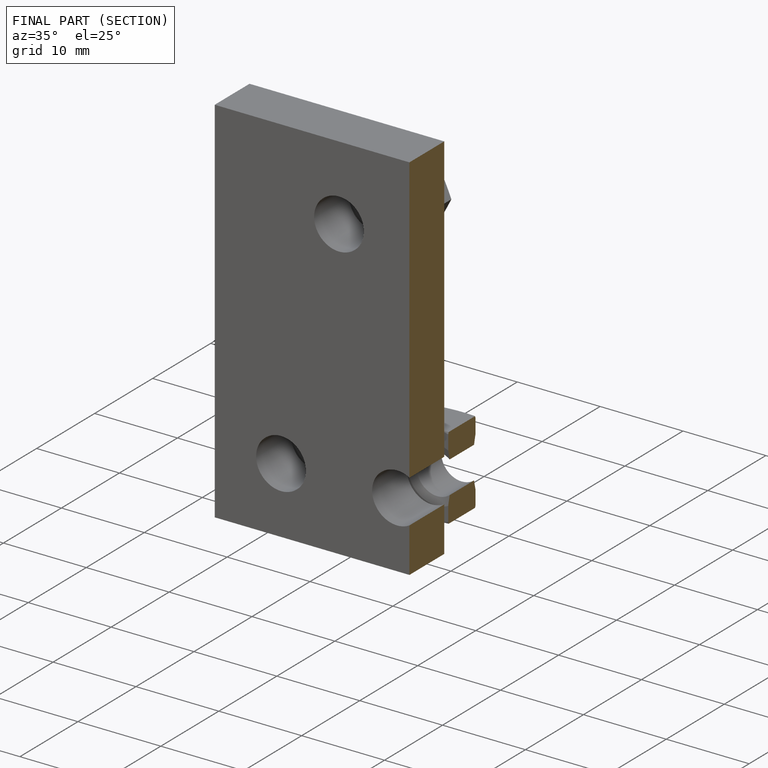
[diagram: finished part — half-section view (interior)]
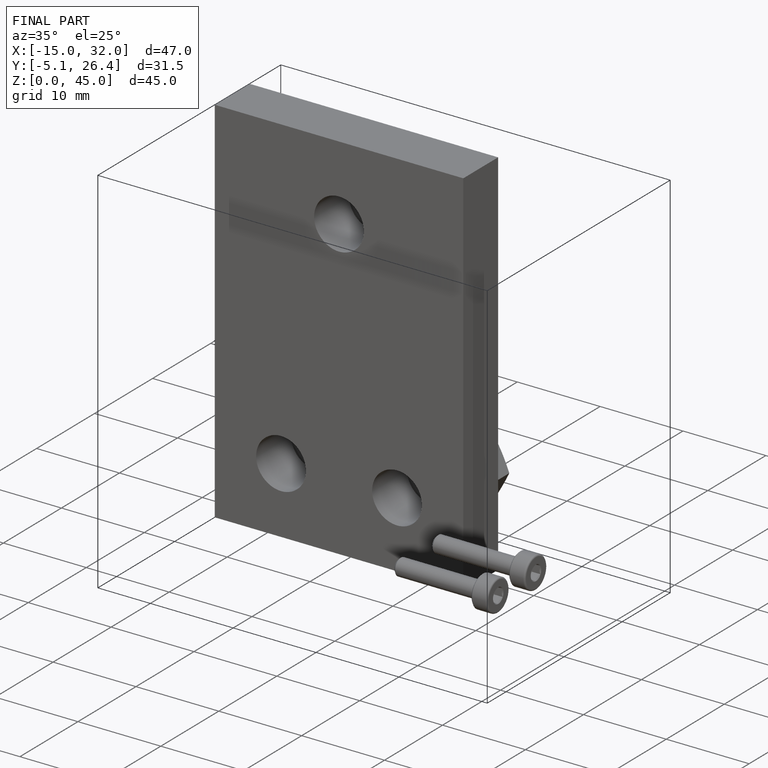
[diagram: finished part — iso view with bounding-box wireframe]
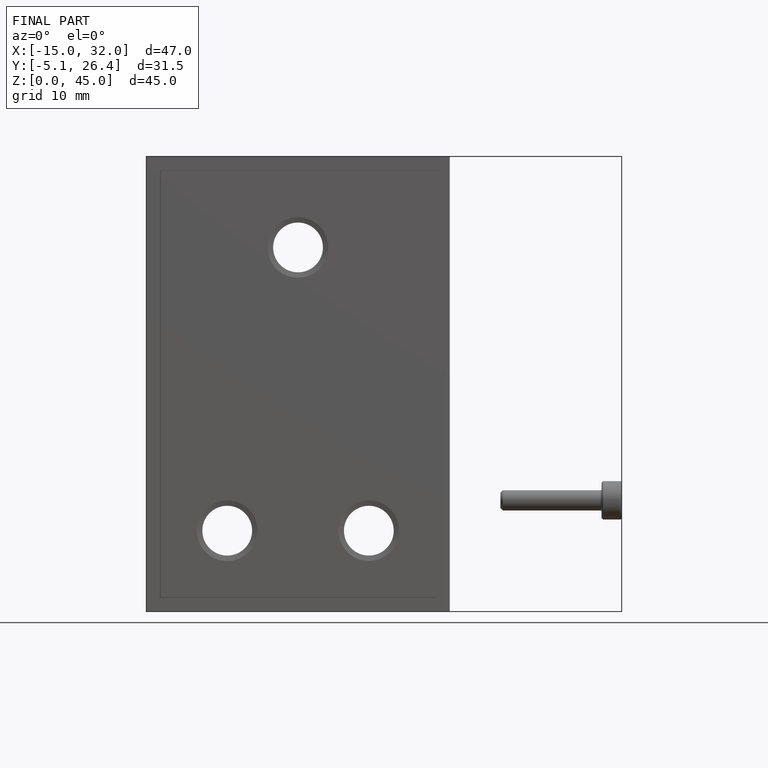
[diagram: finished part — front view with bounding-box wireframe]
